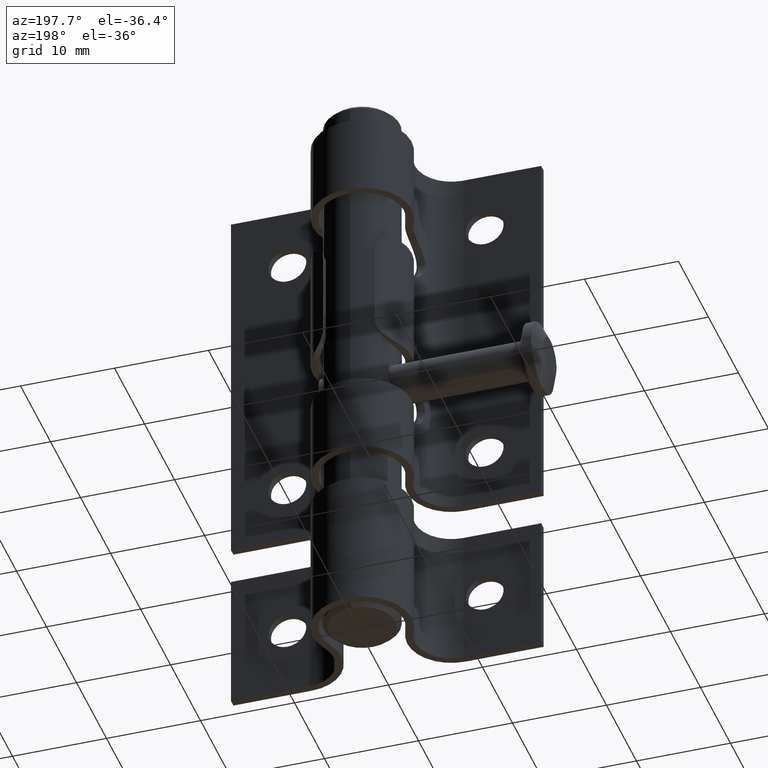
[diagram: clean part render]
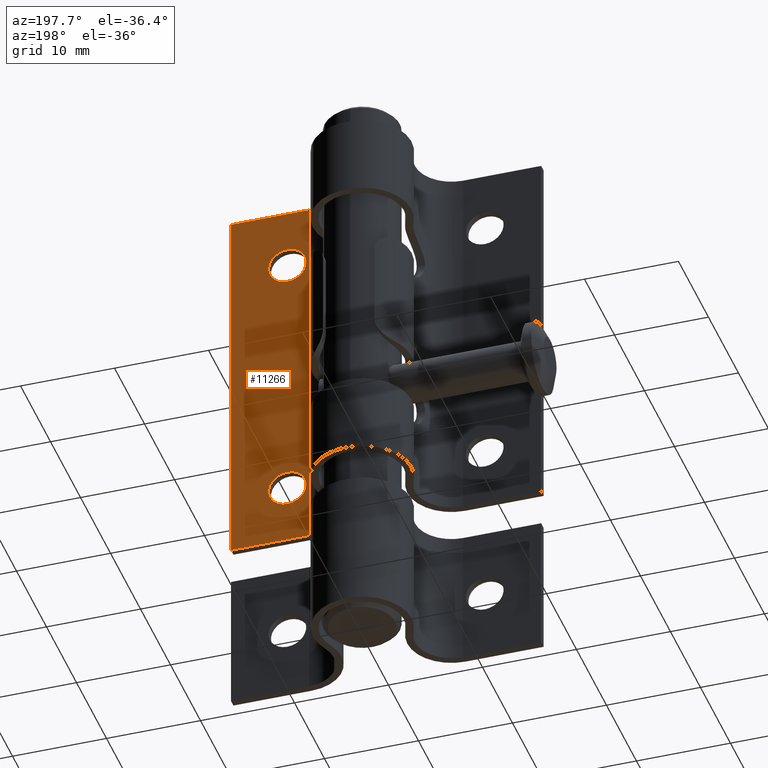
[diagram: same view with one face highlighted and labeled with its STEP entity id]
A machine part, auxiliary view. The second image highlights one B-rep face of the part: STEP entity #11266.
In plain terms, the highlighted planar face has unit normal (0, -1, 0).
Its self-contained STEP definition (entity closure, byte-faithful):
#788 = EDGE_LOOP ( 'NONE', ( #5690 ) ) ;
#877 = FACE_BOUND ( 'NONE', #12970, .T. ) ;
#1589 = CARTESIAN_POINT ( 'NONE',  ( 10.50000000000000000, 0.8000000000000000444, -12.00000000000000000 ) ) ;
#2158 = EDGE_LOOP ( 'NONE', ( #3592, #11805, #7144, #5445 ) ) ;
#2389 = LINE ( 'NONE', #3361, #12043 ) ;
#2495 = FACE_BOUND ( 'NONE', #788, .T. ) ;
#3128 = LINE ( 'NONE', #9870, #4926 ) ;
#3361 = CARTESIAN_POINT ( 'NONE',  ( 16.50000000000000000, 0.8000000000000000444, 20.50000000000000000 ) ) ;
#3592 = ORIENTED_EDGE ( 'NONE', *, *, #6475, .T. ) ;
#4127 = FACE_OUTER_BOUND ( 'NONE', #2158, .T. ) ;
#4697 = VERTEX_POINT ( 'NONE', #4898 ) ;
#4898 = CARTESIAN_POINT ( 'NONE',  ( 8.192006389780432940, 0.7999999999999990452, -20.50000000000000000 ) ) ;
#4926 = VECTOR ( 'NONE', #7400, 1000.000000000000000 ) ;
#5188 = VERTEX_POINT ( 'NONE', #14266 ) ;
#5220 = CARTESIAN_POINT ( 'NONE',  ( 8.192006389780432940, 0.7999999999999990452, 20.50000000000000000 ) ) ;
#5366 = VERTEX_POINT ( 'NONE', #1589 ) ;
#5378 = AXIS2_PLACEMENT_3D ( 'NONE', #7092, #12966, #8237 ) ;
#5427 = DIRECTION ( 'NONE',  ( -1.000000000000000000, -1.174509756527323186E-16, -0.000000000000000000 ) ) ;
#5445 = ORIENTED_EDGE ( 'NONE', *, *, #9521, .T. ) ;
#5690 = ORIENTED_EDGE ( 'NONE', *, *, #9482, .F. ) ;
#6254 = AXIS2_PLACEMENT_3D ( 'NONE', #9267, #10493, #13947 ) ;
#6392 = EDGE_CURVE ( 'NONE', #14793, #4697, #14734, .T. ) ;
#6475 = EDGE_CURVE ( 'NONE', #10935, #4697, #11632, .T. ) ;
#6738 = DIRECTION ( 'NONE',  ( 1.000000000000000000, 1.174509756527323186E-16, 0.000000000000000000 ) ) ;
#6792 = PLANE ( 'NONE',  #12401 ) ;
#7082 = ORIENTED_EDGE ( 'NONE', *, *, #11069, .F. ) ;
#7092 = CARTESIAN_POINT ( 'NONE',  ( 10.50000000000000000, 0.8000000000000000444, 14.00000000000000000 ) ) ;
#7144 = ORIENTED_EDGE ( 'NONE', *, *, #9899, .F. ) ;
#7400 = DIRECTION ( 'NONE',  ( -1.000000000000000000, -1.174509756527323186E-16, -0.000000000000000000 ) ) ;
#7736 = CARTESIAN_POINT ( 'NONE',  ( 16.50000000000000000, 0.8000000000000000444, -20.50000000000000000 ) ) ;
#7957 = DIRECTION ( 'NONE',  ( 1.174509756527323186E-16, -1.000000000000000000, 0.000000000000000000 ) ) ;
#8237 = DIRECTION ( 'NONE',  ( 0.000000000000000000, 0.000000000000000000, 1.000000000000000000 ) ) ;
#8289 = CARTESIAN_POINT ( 'NONE',  ( 8.192006389780432940, 0.7999999999999990452, 20.50000000000000000 ) ) ;
#8705 = VECTOR ( 'NONE', #5427, 1000.000000000000000 ) ;
#9134 = CIRCLE ( 'NONE', #6254, 2.000000000000000000 ) ;
#9267 = CARTESIAN_POINT ( 'NONE',  ( 10.50000000000000000, 0.8000000000000000444, -14.00000000000000000 ) ) ;
#9482 = EDGE_CURVE ( 'NONE', #5366, #5366, #9134, .T. ) ;
#9521 = EDGE_CURVE ( 'NONE', #9544, #10935, #2389, .T. ) ;
#9544 = VERTEX_POINT ( 'NONE', #12715 ) ;
#9870 = CARTESIAN_POINT ( 'NONE',  ( 8.192006389780432940, 0.7999999999999990452, 20.50000000000000000 ) ) ;
#9899 = EDGE_CURVE ( 'NONE', #9544, #14793, #3128, .T. ) ;
#10493 = DIRECTION ( 'NONE',  ( 0.000000000000000000, 1.000000000000000000, 0.000000000000000000 ) ) ;
#10935 = VERTEX_POINT ( 'NONE', #7736 ) ;
#11069 = EDGE_CURVE ( 'NONE', #5188, #5188, #13437, .T. ) ;
#11266 = ADVANCED_FACE ( 'NONE', ( #2495, #877, #4127 ), #6792, .F. ) ;
#11378 = CARTESIAN_POINT ( 'NONE',  ( 8.192006389780432940, 0.7999999999999990452, 20.50000000000000000 ) ) ;
#11632 = LINE ( 'NONE', #14646, #8705 ) ;
#11653 = DIRECTION ( 'NONE',  ( -0.000000000000000000, -0.000000000000000000, -1.000000000000000000 ) ) ;
#11805 = ORIENTED_EDGE ( 'NONE', *, *, #6392, .F. ) ;
#12043 = VECTOR ( 'NONE', #11653, 1000.000000000000000 ) ;
#12401 = AXIS2_PLACEMENT_3D ( 'NONE', #11378, #7957, #6738 ) ;
#12703 = VECTOR ( 'NONE', #14445, 1000.000000000000000 ) ;
#12715 = CARTESIAN_POINT ( 'NONE',  ( 16.50000000000000000, 0.8000000000000000444, 20.50000000000000000 ) ) ;
#12966 = DIRECTION ( 'NONE',  ( 0.000000000000000000, 1.000000000000000000, 0.000000000000000000 ) ) ;
#12970 = EDGE_LOOP ( 'NONE', ( #7082 ) ) ;
#13437 = CIRCLE ( 'NONE', #5378, 2.000000000000000000 ) ;
#13947 = DIRECTION ( 'NONE',  ( 0.000000000000000000, 0.000000000000000000, 1.000000000000000000 ) ) ;
#14266 = CARTESIAN_POINT ( 'NONE',  ( 10.50000000000000000, 0.8000000000000000444, 16.00000000000000000 ) ) ;
#14445 = DIRECTION ( 'NONE',  ( -0.000000000000000000, -0.000000000000000000, -1.000000000000000000 ) ) ;
#14646 = CARTESIAN_POINT ( 'NONE',  ( 8.192006389780432940, 0.7999999999999990452, -20.50000000000000000 ) ) ;
#14734 = LINE ( 'NONE', #8289, #12703 ) ;
#14793 = VERTEX_POINT ( 'NONE', #5220 ) ;